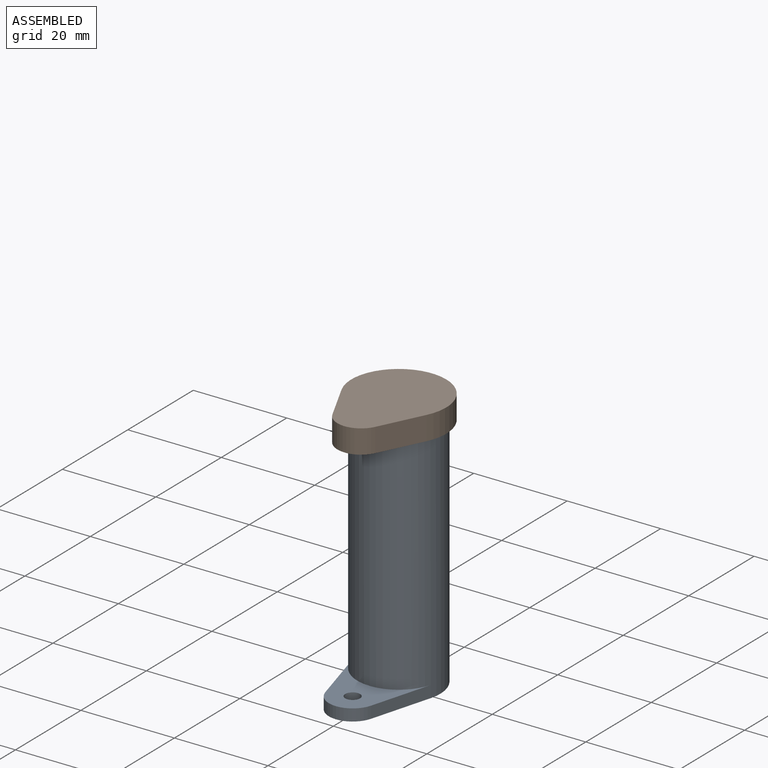
[diagram: assembled view]
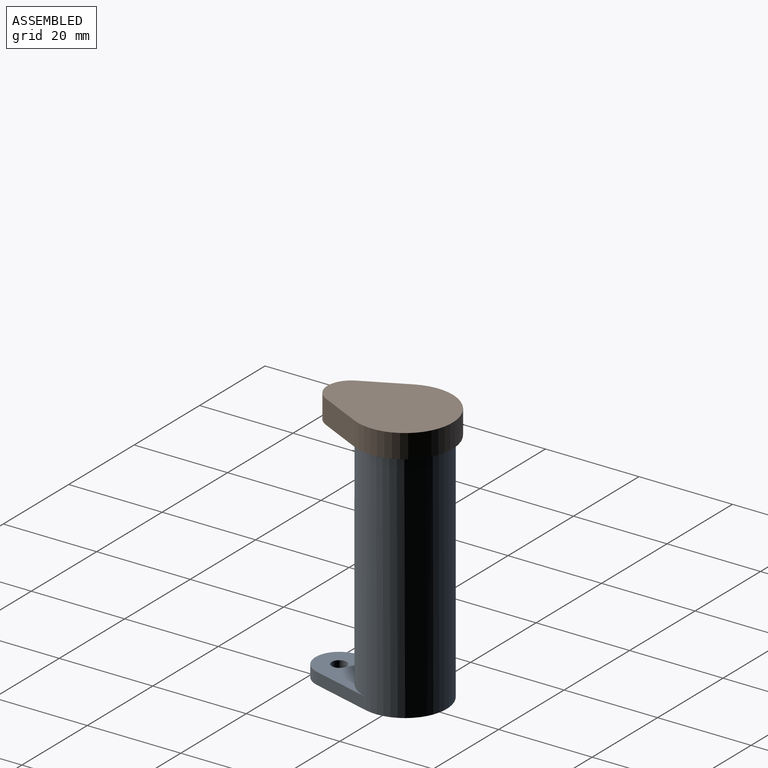
[diagram: assembled view, second angle]
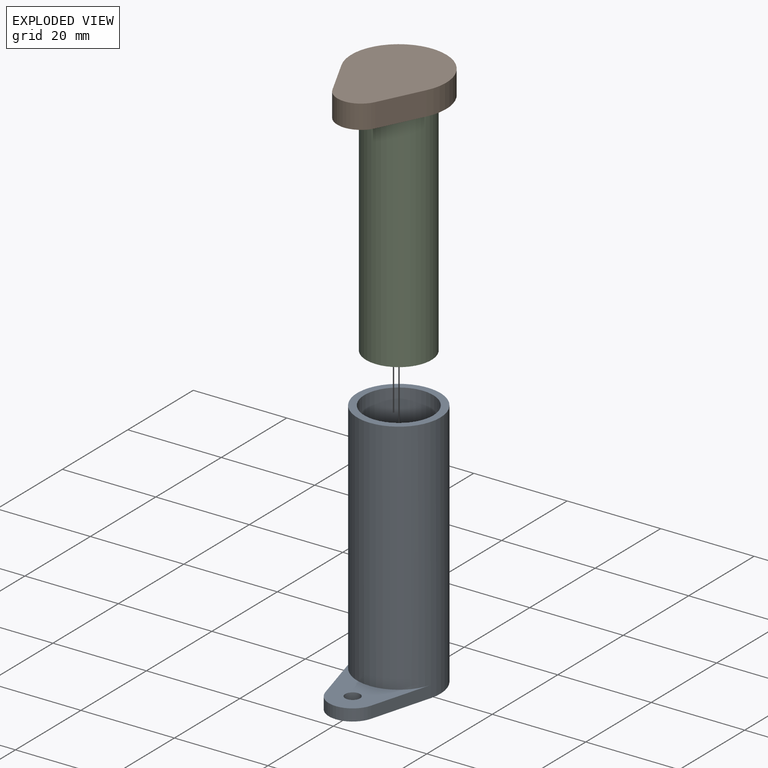
[diagram: exploded view]
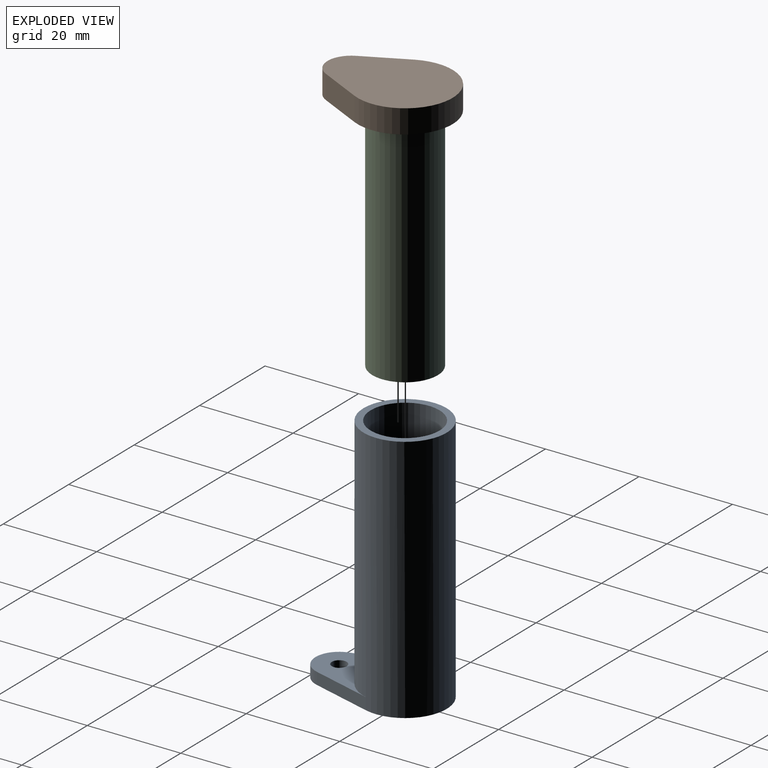
[diagram: exploded view, second angle]
ASSEMBLY  parts=3 mates=2
PART A: 12 faces, bbox 17.8x28.1x53.4 mm
  f0: cylinder r=8.89mm len=3.18mm, axis (0,0,-1), area 7.9mm2, adj f1
  f1: cylinder r=1.59mm len=3.18mm, axis (0,1,0), area 15.4mm2, adj f0,f2
  f2: cylinder r=7.37mm len=50.88mm, axis (0,0,-1), area 2346.7mm2, adj f1,f3,f4
  f3: plane 17.78x17.78mm, normal (0,0,1), area 77.8mm2, adj f2,f5
  f4: plane 14.73x14.73mm, normal (0,0,1), area 170.5mm2, adj f2
  f5: cylinder r=8.89mm len=53.42mm, axis (0,0,-1), area 2925.1mm2, adj f3,f6,f7,f8,f9
  f6: plane 17.12x16.77mm, normal (0,0,1), area 112.6mm2, adj f5,f7,f9,f10,f11
  f7: plane 13.06x3.67mm, normal (0.96,-0.27,0), area 34.5mm2, adj f5,f6,f8,f11
  f8: plane 28.06x17.78mm, normal (0,0,-1), area 360.9mm2, adj f5,f7,f9,f10,f11
  f9: plane 13.06x3.67mm, normal (-0.96,-0.27,0), area 34.5mm2, adj f5,f6,f8,f11
  f10: cylinder r=1.59mm len=3.18mm, axis (0,0,1), area 25.3mm2, adj f6,f8
  f11: cylinder r=5.08mm len=9.78mm, axis (0,0,-1), area 33.5mm2, adj f6,f7,f8,f9
PART B: 8 faces, bbox 20.3x26.8x5.1 mm
  f0: plane 9.28x5.08mm, normal (0.9,-0.44,0), area 52.5mm2, adj f1,f3,f4,f5
  f1: cylinder r=10.16mm len=20.32mm, axis (0,0,1), area 209.3mm2, adj f0,f2,f3,f4
  f2: plane 9.28x5.08mm, normal (-0.9,-0.44,0), area 52.5mm2, adj f1,f3,f4,f5
  f3: plane 26.76x20.32mm, normal (0,0,-1), area 147.3mm2, adj f0,f1,f2,f5,f6
  f4: plane 26.76x20.32mm, normal (0,0,1), area 395.6mm2, adj f0,f1,f2,f5
  f5: cylinder r=5.08mm len=9.12mm, axis (0,0,1), area 57.5mm2, adj f0,f2,f3,f4
  f6: cylinder r=8.89mm len=17.78mm, axis (0,0,-1), area 156.1mm2, adj f3,f7
  f7: plane 17.78x17.78mm, normal (0,0,-1), area 248.3mm2, adj f6
PART C: 5 faces, bbox 14x50.3x14 mm
  f0: cylinder r=7mm len=49.05mm, axis (0,-1,0), area 2157.8mm2, adj f1,f2
  f1: plane 14x14mm, normal (0,1,0), area 136.7mm2, adj f0,f3
  f2: plane 14x14mm, normal (0,-1,0), area 154mm2, adj f0
  f3: cylinder r=2.35mm len=4.7mm, axis (0,-1,0), area 18mm2, adj f1,f4
  f4: plane 4.7x4.7mm, normal (0,1,0), area 17.3mm2, adj f3
PLACE A t=(0,0,-2.54)mm
PLACE B t=(0,0,53.16)mm
PLACE C rot(axis=(1,0,0),90deg) t=(0,0,0)mm
MATE fastened A.f2 <-> C.f0  axis (0,0,1) through (0,0,0)mm
MATE fastened B.f6 <-> A.f2  axis (0,0,-1) through (0,0,50.88)mm
